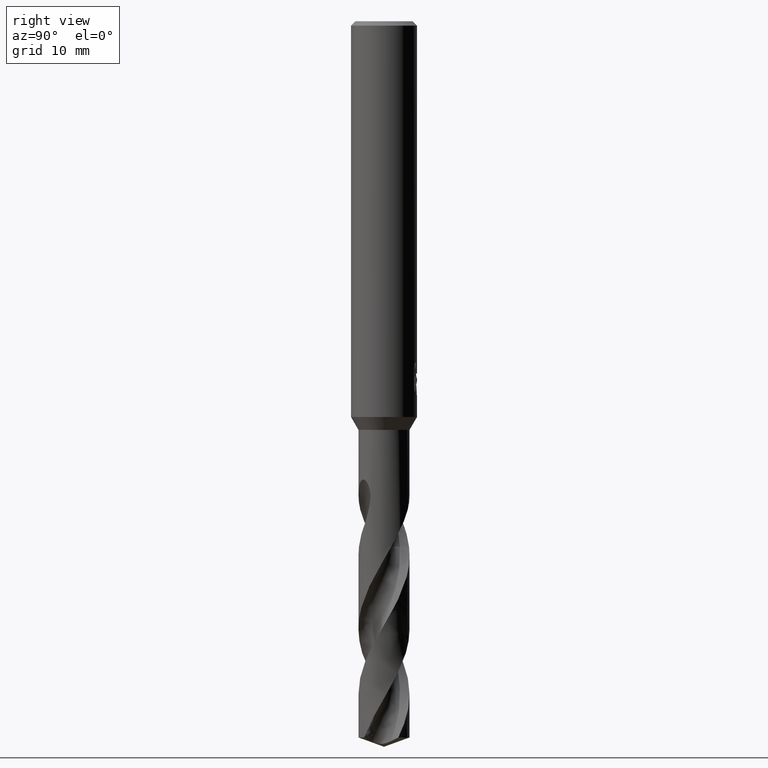
[diagram: clean part render]
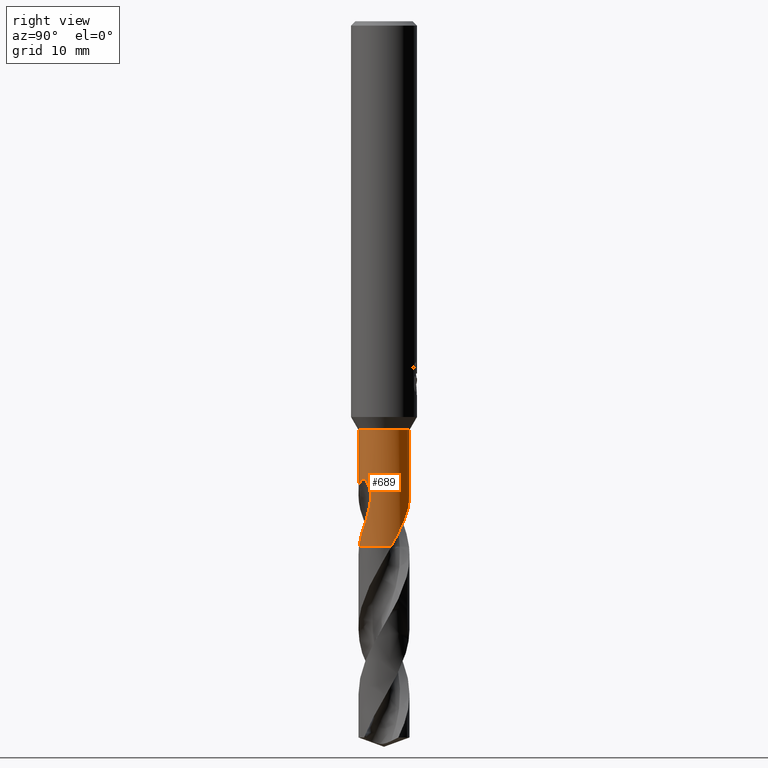
[diagram: same view with one face highlighted and labeled with its STEP entity id]
A machine part, right view. The second image highlights one B-rep face of the part: STEP entity #689.
In plain terms, the highlighted cylindrical surface (edge-blend (fillet) strip) has radius 2.325 mm, axis along (-0, -0, 1).
Its self-contained STEP definition (entity closure, byte-faithful):
#309=VERTEX_POINT('',#833);
#347=EDGE_CURVE('',#553,#309,#874,.T.);
#393=VERTEX_POINT('',#926);
#399=VERTEX_POINT('',#933);
#409=EDGE_CURVE('',#563,#393,#944,.T.);
#453=EDGE_CURVE('',#399,#759,#995,.T.);
#485=VERTEX_POINT('',#1028);
#553=VERTEX_POINT('',#1105);
#563=VERTEX_POINT('',#1115);
#565=EDGE_CURVE('',#621,#553,#1117,.T.);
#583=VERTEX_POINT('',#1136);
#599=EDGE_CURVE('',#563,#583,#1152,.T.);
#621=VERTEX_POINT('',#1176);
#625=EDGE_CURVE('',#393,#759,#1180,.T.);
#689=ADVANCED_FACE('',(#1253),#1254,.T.);
#699=EDGE_CURVE('',#399,#485,#1264,.T.);
#713=EDGE_CURVE('',#621,#485,#1279,.T.);
#719=EDGE_CURVE('',#309,#583,#1285,.T.);
#759=VERTEX_POINT('',#1328);
#833=CARTESIAN_POINT('',(1.61605482158155,-1.67152379990325,-45.5204));
#874=B_SPLINE_CURVE_WITH_KNOTS('',3,(#1789,#1790,#1791,#1792),.UNSPECIFIED.,.F.,.F.,(4,4),(0.0,1.33622376878192),.UNSPECIFIED.);
#926=CARTESIAN_POINT('',(1.48152781817987,1.79184271741668,-45.5204));
#933=CARTESIAN_POINT('',(0.0,2.325,-37.169134295109));
#944=B_SPLINE_CURVE_WITH_KNOTS('',3,(#2695,#2696,#2697,#2698,#2699,#2700,#2701,#2702),.UNSPECIFIED.,.F.,.F.,(4,2,2,4),(0.0,1.33621895500289,2.18349234355033,3.72058929052714),.UNSPECIFIED.);
#995=LINE('',#3119,#3120);
#1028=CARTESIAN_POINT('',(2.84720977263703E-016,-2.325,-37.169134295109));
#1105=CARTESIAN_POINT('',(1.89171802965627,-1.35167595831005,-44.2472759697795));
#1115=CARTESIAN_POINT('',(2.22970567293028,0.658815309553846,-47.8));
#1117=B_SPLINE_CURVE_WITH_KNOTS('',3,(#4807,#4808,#4809,#4810,#4811,#4812,#4813,#4814,#4815,#4816,#4817,#4818,#4819,#4820,#4821,#4822,#4823,#4824,#4825,#4826,#4827,#4828,#4829,#4830,#4831,#4832,#4833,#4834),.UNSPECIFIED.,.F.,.F.,(4,2,2,2,2,2,2,2,2,2,2,2,2,4),(0.0,1.13912248348587,1.76110910374652,2.32447259930614,2.97896567979316,3.76516129419391,4.44657056783377,4.75536160848624,4.98105022244952,5.19461766066308,5.46554068969922,5.86191207239769,6.42540059555989,7.06617161550016),.UNSPECIFIED.);
#1136=CARTESIAN_POINT('',(0.468979195280663,-2.27720958947434,-47.8));
#1152=CIRCLE('',#5108,2.325);
#1176=CARTESIAN_POINT('',(6.88258591151304E-013,-2.325,-43.0489714980473));
#1180=B_SPLINE_CURVE_WITH_KNOTS('',3,(#5335,#5336,#5337,#5338,#5339,#5340,#5341,#5342,#5343,#5344,#5345,#5346,#5347,#5348,#5349,#5350,#5351,#5352,#5353,#5354,#5355,#5356,#5357,#5358,#5359,#5360,#5361,#5362),.UNSPECIFIED.,.F.,.F.,(4,2,2,2,2,2,2,2,2,2,2,2,2,4),(0.0,1.13912248348588,1.76110910374654,2.32447259930621,2.97896567979331,3.76516129419405,4.44657056783404,4.75536160848655,4.98105022244976,5.19461766066321,5.46554068969925,5.86191207239794,6.42540059556112,7.06617161550241),.UNSPECIFIED.);
#1253=FACE_OUTER_BOUND('',#6110,.T.);
#1254=CYLINDRICAL_SURFACE('',#6111,2.325);
#1264=CIRCLE('',#6124,2.325);
#1279=LINE('',#6602,#6603);
#1285=B_SPLINE_CURVE_WITH_KNOTS('',3,(#6611,#6612,#6613,#6614,#6615,#6616,#6617,#6618,#6619,#6620),.UNSPECIFIED.,.F.,.F.,(4,2,2,2,4),(0.0,0.564898171237786,1.07733946559568,1.72985659157109,2.38118299164643),.UNSPECIFIED.);
#1328=CARTESIAN_POINT('',(-6.86593256614366E-013,2.325,-43.0489714980473));
#1789=CARTESIAN_POINT('',(1.89171802970889,-1.35167595823641,-44.2472759698084));
#1790=CARTESIAN_POINT('',(1.81676194605543,-1.45657963283355,-44.6736150630028));
#1791=CARTESIAN_POINT('',(1.72641983044957,-1.56482121826764,-45.1024912825263));
#1792=CARTESIAN_POINT('',(1.61605482158155,-1.67152379990326,-45.5204));
#2695=CARTESIAN_POINT('',(2.22970567293029,0.658815309553836,-47.8));
#2696=CARTESIAN_POINT('',(2.16643862118148,0.872937389214412,-47.4145965703617));
#2697=CARTESIAN_POINT('',(2.07621810473912,1.0700053167175,-47.058610799942));
#2698=CARTESIAN_POINT('',(1.87857789240484,1.37719289910787,-46.4035688927766));
#2699=CARTESIAN_POINT('',(1.81184241527685,1.45842224245081,-46.2036975720074));
#2700=CARTESIAN_POINT('',(1.69439563553563,1.59633490886758,-45.8851917001661));
#2701=CARTESIAN_POINT('',(1.60037027567945,1.69358163397721,-45.6983036746699));
#2702=CARTESIAN_POINT('',(1.48152781817987,1.79184271741668,-45.5204));
#3119=CARTESIAN_POINT('',(-2.84720977263703E-016,2.325,-42.4845671475545));
#3120=VECTOR('',#7185,1.0);
#4807=CARTESIAN_POINT('',(-1.48152781817987,-1.79184271741668,-45.5204));
#4808=CARTESIAN_POINT('',(-1.32816215524954,-1.91864820864443,-45.1970161379965));
#4809=CARTESIAN_POINT('',(-1.15182628411204,-2.03136949808758,-44.8955182134654));
#4810=CARTESIAN_POINT('',(-0.844349045462329,-2.16953302435673,-44.3918451695184));
#4811=CARTESIAN_POINT('',(-0.733704405919692,-2.20927740577945,-44.214636223586));
#4812=CARTESIAN_POINT('',(-0.519510353482972,-2.26867677151736,-43.8716055507409));
#4813=CARTESIAN_POINT('',(-0.416917325289483,-2.28966242904573,-43.7073827692751));
#4814=CARTESIAN_POINT('',(-0.19484661980814,-2.31994993414916,-43.3534389842936));
#4815=CARTESIAN_POINT('',(-0.0735139969543639,-2.32706061704974,-43.1609474906288));
#4816=CARTESIAN_POINT('',(0.195934632326865,-2.32139290999632,-42.74914471164));
#4817=CARTESIAN_POINT('',(0.355690414189739,-2.30386268257938,-42.5148244390516));
#4818=CARTESIAN_POINT('',(0.663758797758215,-2.23306719086912,-42.1284464504009));
#4819=CARTESIAN_POINT('',(0.834200744659192,-2.17912994749307,-41.9399090686598));
#4820=CARTESIAN_POINT('',(1.09216290122272,-2.05445568284207,-41.7633628792005));
#4821=CARTESIAN_POINT('',(1.17755003406933,-2.0073883072812,-41.7197312722515));
#4822=CARTESIAN_POINT('',(1.32716792808108,-1.91047541566616,-41.6862143675086));
#4823=CARTESIAN_POINT('',(1.3885346307611,-1.86634055462212,-41.6855885216974));
#4824=CARTESIAN_POINT('',(1.50283343071055,-1.77543194979653,-41.7149227780663));
#4825=CARTESIAN_POINT('',(1.55282202345979,-1.73152490647007,-41.7424262534026));
#4826=CARTESIAN_POINT('',(1.65454825534066,-1.63530604700301,-41.8284814688829));
#4827=CARTESIAN_POINT('',(1.70161141445059,-1.58544301599989,-41.8920177676555));
#4828=CARTESIAN_POINT('',(1.79801198251172,-1.47656343284236,-42.0659998892847));
#4829=CARTESIAN_POINT('',(1.84408953241719,-1.41727070809299,-42.1950432119692));
#4830=CARTESIAN_POINT('',(1.93073666212593,-1.29821165554222,-42.5560920700773));
#4831=CARTESIAN_POINT('',(1.962061605364,-1.24749821680123,-42.8132262215859));
#4832=CARTESIAN_POINT('',(1.98209052043839,-1.21546136214633,-43.4279852717851));
#4833=CARTESIAN_POINT('',(1.96789872450227,-1.24505839729928,-43.8139817322582));
#4834=CARTESIAN_POINT('',(1.89171802965627,-1.35167595831005,-44.2472759697795));
#5108=AXIS2_PLACEMENT_3D('',#7313,#7314,#7315);
#5335=CARTESIAN_POINT('',(1.48152781817987,1.79184271741668,-45.5204));
#5336=CARTESIAN_POINT('',(1.32816215524954,1.91864820864443,-45.1970161379965));
#5337=CARTESIAN_POINT('',(1.15182628411203,2.03136949808758,-44.8955182134654));
#5338=CARTESIAN_POINT('',(0.84434904546233,2.16953302435673,-44.3918451695184));
#5339=CARTESIAN_POINT('',(0.733704405919695,2.20927740577945,-44.214636223586));
#5340=CARTESIAN_POINT('',(0.51951035348296,2.26867677151736,-43.8716055507408));
#5341=CARTESIAN_POINT('',(0.416917325289457,2.28966242904573,-43.7073827692751));
#5342=CARTESIAN_POINT('',(0.194846619808166,2.31994993414916,-43.3534389842937));
#5343=CARTESIAN_POINT('',(0.0735139969543763,2.32706061704974,-43.1609474906288));
#5344=CARTESIAN_POINT('',(-0.195934632326863,2.32139290999632,-42.74914471164));
#5345=CARTESIAN_POINT('',(-0.355690414189737,2.30386268257938,-42.5148244390516));
#5346=CARTESIAN_POINT('',(-0.66375879775824,2.23306719086912,-42.1284464504008));
#5347=CARTESIAN_POINT('',(-0.834200744659196,2.17912994749306,-41.9399090686598));
#5348=CARTESIAN_POINT('',(-1.09216290122272,2.05445568284207,-41.7633628792005));
#5349=CARTESIAN_POINT('',(-1.17755003406933,2.00738830728121,-41.7197312722515));
#5350=CARTESIAN_POINT('',(-1.32716792808106,1.91047541566618,-41.6862143675087));
#5351=CARTESIAN_POINT('',(-1.38853463076109,1.86634055462212,-41.6855885216974));
#5352=CARTESIAN_POINT('',(-1.50283343071054,1.77543194979653,-41.7149227780663));
#5353=CARTESIAN_POINT('',(-1.55282202345978,1.73152490647007,-41.7424262534026));
#5354=CARTESIAN_POINT('',(-1.65454825534067,1.63530604700301,-41.8284814688829));
#5355=CARTESIAN_POINT('',(-1.7016114144506,1.58544301599988,-41.8920177676555));
#5356=CARTESIAN_POINT('',(-1.79801198251176,1.47656343284232,-42.0659998892848));
#5357=CARTESIAN_POINT('',(-1.84408953241722,1.41727070809296,-42.1950432119693));
#5358=CARTESIAN_POINT('',(-1.93073666212595,1.29821165554219,-42.5560920700774));
#5359=CARTESIAN_POINT('',(-1.962061605364,1.24749821680123,-42.8132262215861));
#5360=CARTESIAN_POINT('',(-1.98209052043838,1.21546136214634,-43.4279852717849));
#5361=CARTESIAN_POINT('',(-1.9678987245023,1.24505839729924,-43.813981732258));
#5362=CARTESIAN_POINT('',(-1.89171802965627,1.35167595831006,-44.2472759697795));
#6110=EDGE_LOOP('',(#7441,#7442,#7443,#7444,#7445,#7446,#7447,#7448,#7449));
#6111=AXIS2_PLACEMENT_3D('',#7450,#7451,#7452);
#6124=AXIS2_PLACEMENT_3D('',#7454,#7455,#7456);
#6602=CARTESIAN_POINT('',(2.84720977263703E-016,-2.325,-42.4845671475545));
#6603=VECTOR('',#7464,1.0);
#6611=CARTESIAN_POINT('',(1.61605482158155,-1.67152379990326,-45.5204));
#6612=CARTESIAN_POINT('',(1.55171583248406,-1.73372772039347,-45.6860738578875));
#6613=CARTESIAN_POINT('',(1.48173903121358,-1.79446044528747,-45.8528149749349));
#6614=CARTESIAN_POINT('',(1.32948919936751,-1.9095349902067,-46.1781617749142));
#6615=CARTESIAN_POINT('',(1.25199236973867,-1.96161030970092,-46.3342576350962));
#6616=CARTESIAN_POINT('',(1.05756490313638,-2.07437477279481,-46.719876917298));
#6617=CARTESIAN_POINT('',(0.944194570396263,-2.12830651825332,-46.9374721347954));
#6618=CARTESIAN_POINT('',(0.71121554188362,-2.21704932584224,-47.3699632003345));
#6619=CARTESIAN_POINT('',(0.591367074290005,-2.25200445716012,-47.5844691202325));
#6620=CARTESIAN_POINT('',(0.468979195280653,-2.27720958947434,-47.8));
#7185=DIRECTION('',(0.0,0.0,-1.0));
#7313=CARTESIAN_POINT('',(0.0,0.0,-47.8));
#7314=DIRECTION('',(0.0,0.0,-1.0));
#7315=DIRECTION('',(0.0,1.0,0.0));
#7441=ORIENTED_EDGE('',*,*,#453,.F.);
#7442=ORIENTED_EDGE('',*,*,#699,.T.);
#7443=ORIENTED_EDGE('',*,*,#713,.F.);
#7444=ORIENTED_EDGE('',*,*,#565,.T.);
#7445=ORIENTED_EDGE('',*,*,#347,.T.);
#7446=ORIENTED_EDGE('',*,*,#719,.T.);
#7447=ORIENTED_EDGE('',*,*,#599,.F.);
#7448=ORIENTED_EDGE('',*,*,#409,.T.);
#7449=ORIENTED_EDGE('',*,*,#625,.T.);
#7450=CARTESIAN_POINT('',(0.0,0.0,-42.4845671475545));
#7451=DIRECTION('',(-0.0,-0.0,1.0));
#7452=DIRECTION('',(0.0,1.0,0.0));
#7454=CARTESIAN_POINT('',(0.0,0.0,-37.169134295109));
#7455=DIRECTION('',(0.0,0.0,-1.0));
#7456=DIRECTION('',(0.0,1.0,0.0));
#7464=DIRECTION('',(-0.0,-0.0,1.0));